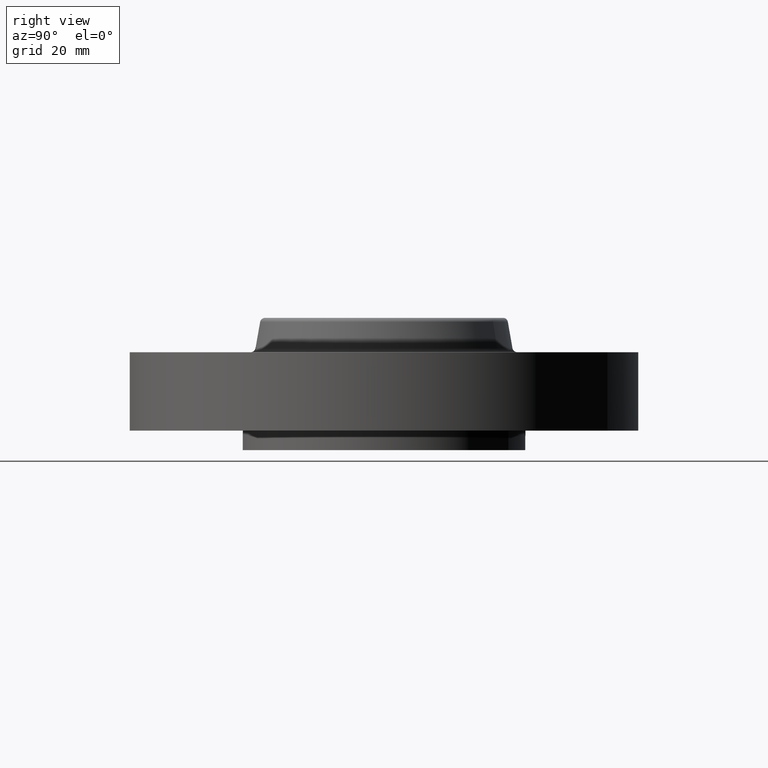
[diagram: clean part render]
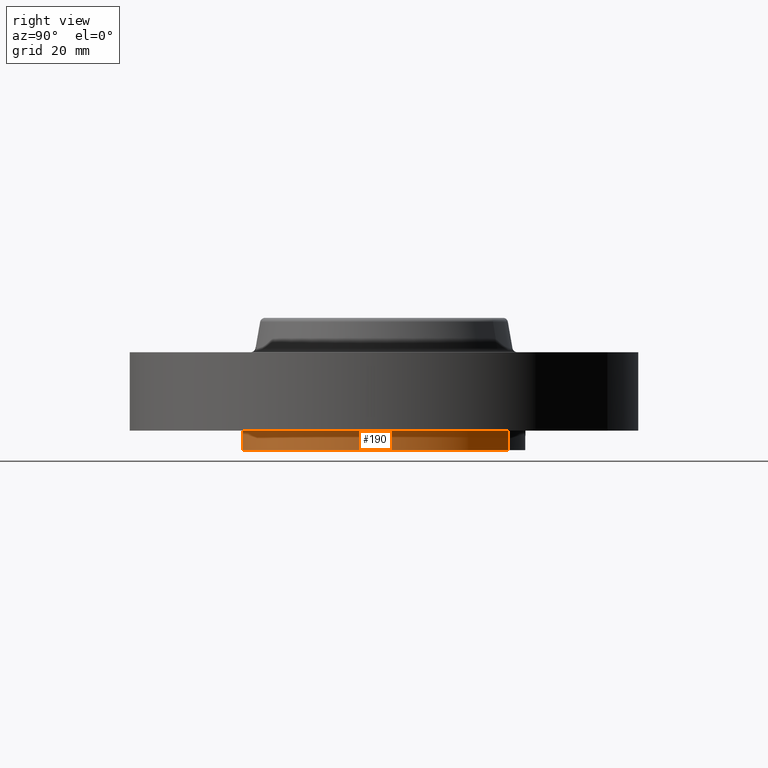
[diagram: same view with one face highlighted and labeled with its STEP entity id]
A machine part, right view. The second image highlights one B-rep face of the part: STEP entity #190.
In plain terms, the highlighted cylindrical surface (partial cylindrical patch) has radius 45.974 mm, axis along (0, 0, -1).
Its self-contained STEP definition (entity closure, byte-faithful):
#136=AXIS2_PLACEMENT_3D('Circle Axis2P3D',#134,#135,$) ;
#151=AXIS2_PLACEMENT_3D('Cylinder Axis2P3D',#148,#149,#150) ;
#181=AXIS2_PLACEMENT_3D('Circle Axis2P3D',#179,#180,$) ;
#129=CARTESIAN_POINT('Vertex',(-0.867760224877,-1.58842443703,-0.250000000001)) ;
#131=CARTESIAN_POINT('Vertex',(0.867760224877,1.58842443703,-0.250000000001)) ;
#134=CARTESIAN_POINT('Axis2P3D Location',(0.,0.,-0.250000000001)) ;
#148=CARTESIAN_POINT('Axis2P3D Location',(0.,0.,0.595000000002)) ;
#153=CARTESIAN_POINT('Line Origine',(-0.867760224877,-1.58842443703,-0.125)) ;
#157=CARTESIAN_POINT('Vertex',(-0.867760224877,-1.58842443703,2.79741234551E-016)) ;
#164=CARTESIAN_POINT('Vertex',(0.867760224877,1.58842443703,2.79741234551E-016)) ;
#167=CARTESIAN_POINT('Line Origine',(0.867760224877,1.58842443703,-0.125)) ;
#179=CARTESIAN_POINT('Axis2P3D Location',(0.,0.,2.79741234551E-016)) ;
#135=DIRECTION('Axis2P3D Direction',(0.,0.,-0.0393700787402)) ;
#149=DIRECTION('Axis2P3D Direction',(0.,0.,-0.0393700787402)) ;
#150=DIRECTION('Axis2P3D XDirection',(0.0188750212049,0.0345504945626,0.)) ;
#154=DIRECTION('Vector Direction',(0.,0.,-0.0393700787402)) ;
#168=DIRECTION('Vector Direction',(0.,0.,-0.0393700787402)) ;
#180=DIRECTION('Axis2P3D Direction',(0.,0.,-0.0393700787402)) ;
#155=VECTOR('Line Direction',#154,0.0393700787402) ;
#169=VECTOR('Line Direction',#168,0.0393700787402) ;
#185=ORIENTED_EDGE('',*,*,#138,.F.) ;
#186=ORIENTED_EDGE('',*,*,#171,.T.) ;
#187=ORIENTED_EDGE('',*,*,#183,.T.) ;
#188=ORIENTED_EDGE('',*,*,#159,.F.) ;
#190=ADVANCED_FACE('PartBody',(#189),#152,.T.) ;
#137=CIRCLE('generated circle',#136,1.81000000001) ;
#182=CIRCLE('generated circle',#181,1.81000000001) ;
#152=CYLINDRICAL_SURFACE('generated cylinder',#151,1.81000000001) ;
#138=EDGE_CURVE('',#132,#130,#137,.T.) ;
#159=EDGE_CURVE('',#130,#158,#156,.F.) ;
#171=EDGE_CURVE('',#132,#165,#170,.F.) ;
#183=EDGE_CURVE('',#165,#158,#182,.T.) ;
#184=EDGE_LOOP('',(#185,#186,#187,#188)) ;
#189=FACE_OUTER_BOUND('',#184,.T.) ;
#156=LINE('Line',#153,#155) ;
#170=LINE('Line',#167,#169) ;
#130=VERTEX_POINT('',#129) ;
#132=VERTEX_POINT('',#131) ;
#158=VERTEX_POINT('',#157) ;
#165=VERTEX_POINT('',#164) ;